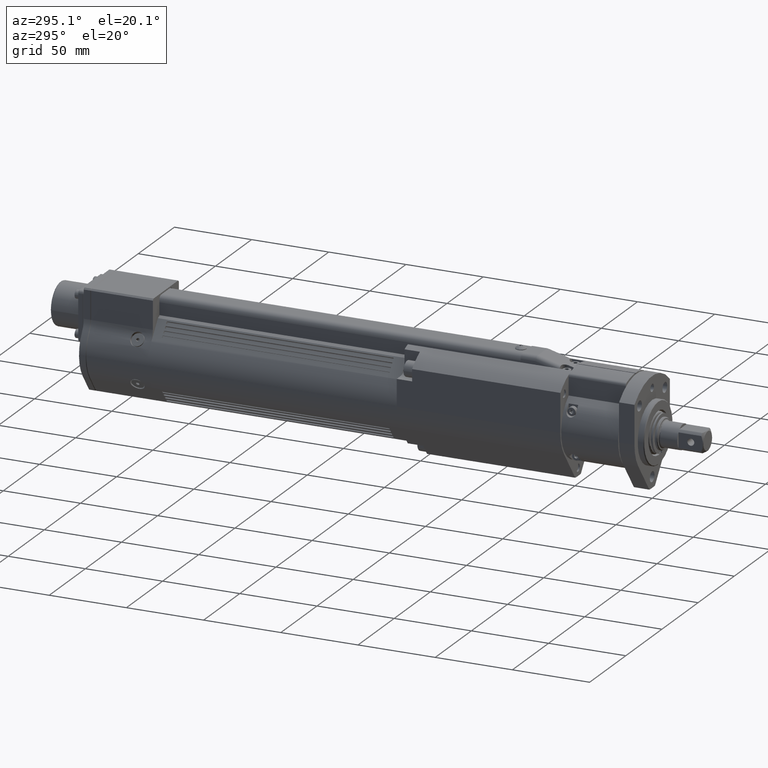
[diagram: clean part render]
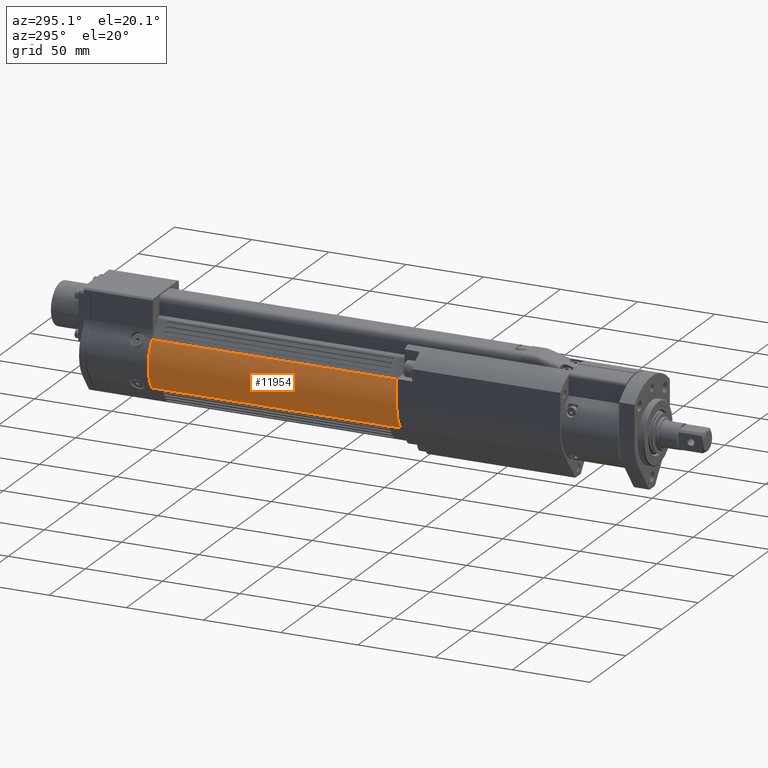
[diagram: same view with one face highlighted and labeled with its STEP entity id]
A machine part, auxiliary view. The second image highlights one B-rep face of the part: STEP entity #11954.
In plain terms, the highlighted cylindrical surface (partial cylindrical patch) has radius 24.5 mm, axis along (0, 1, 0).
Its self-contained STEP definition (entity closure, byte-faithful):
#1421=LINE('',#19137,#2456);
#1424=LINE('',#19142,#2459);
#2456=VECTOR('',#15315,10.);
#2459=VECTOR('',#15320,10.);
#2937=CYLINDRICAL_SURFACE('',#12928,24.5000000000046);
#3361=FACE_OUTER_BOUND('',#4085,.T.);
#4085=EDGE_LOOP('',(#9347,#9348,#9349,#9350,#9351,#9352));
#4704=CIRCLE('',#12792,24.5000000000046);
#4718=CIRCLE('',#12822,24.5000000000046);
#4743=CIRCLE('',#12929,24.5);
#4744=CIRCLE('',#12930,24.5000000000046);
#5413=VERTEX_POINT('',#18449);
#5414=VERTEX_POINT('',#18450);
#5443=VERTEX_POINT('',#18564);
#5608=VERTEX_POINT('',#19136);
#5609=VERTEX_POINT('',#19141);
#5610=VERTEX_POINT('',#19143);
#6699=EDGE_CURVE('',#5413,#5414,#4704,.T.);
#6744=EDGE_CURVE('',#5443,#5413,#4718,.T.);
#6966=EDGE_CURVE('',#5414,#5608,#1421,.T.);
#6969=EDGE_CURVE('',#5443,#5609,#1424,.T.);
#6970=EDGE_CURVE('',#5610,#5609,#4743,.T.);
#6971=EDGE_CURVE('',#5608,#5610,#4744,.T.);
#9347=ORIENTED_EDGE('',*,*,#6966,.F.);
#9348=ORIENTED_EDGE('',*,*,#6699,.F.);
#9349=ORIENTED_EDGE('',*,*,#6744,.F.);
#9350=ORIENTED_EDGE('',*,*,#6969,.T.);
#9351=ORIENTED_EDGE('',*,*,#6970,.F.);
#9352=ORIENTED_EDGE('',*,*,#6971,.F.);
#11954=ADVANCED_FACE('',(#3361),#2937,.T.);
#12792=AXIS2_PLACEMENT_3D('',#18451,#14827,#14828);
#12822=AXIS2_PLACEMENT_3D('',#18566,#14915,#14916);
#12928=AXIS2_PLACEMENT_3D('',#19140,#15318,#15319);
#12929=AXIS2_PLACEMENT_3D('',#19144,#15321,#15322);
#12930=AXIS2_PLACEMENT_3D('',#19145,#15323,#15324);
#14827=DIRECTION('center_axis',(2.21945204084769E-16,1.,7.29172631221787E-18));
#14828=DIRECTION('ref_axis',(-0.788010753602872,1.79384442508469E-16,-0.615661475330586));
#14915=DIRECTION('center_axis',(2.21945204084769E-16,1.,7.29172631221787E-18));
#14916=DIRECTION('ref_axis',(-0.788010753602872,1.79384442508469E-16,-0.615661475330586));
#15315=DIRECTION('',(-2.21945204084769E-16,-1.,-7.29172631221787E-18));
#15318=DIRECTION('center_axis',(2.21945204084769E-16,1.,7.29172631221787E-18));
#15319=DIRECTION('ref_axis',(0.788010753602872,-1.79384442508469E-16,0.615661475330586));
#15320=DIRECTION('',(-2.21945204084769E-16,-1.,-7.29172631221787E-18));
#15321=DIRECTION('center_axis',(-2.18217717075214E-16,-1.,-7.16926448557887E-18));
#15322=DIRECTION('ref_axis',(-1.,2.18217717075214E-16,1.32289332529069E-15));
#15323=DIRECTION('center_axis',(-2.18217717075214E-16,-1.,-7.16926448557887E-18));
#15324=DIRECTION('ref_axis',(0.788010753602872,-1.79384442508469E-16,0.615661475330586));
#18449=CARTESIAN_POINT('',(-20.1369863014679,315.,13.9553496084682));
#18450=CARTESIAN_POINT('',(-19.3062634634646,315.,15.083706145348));
#18451=CARTESIAN_POINT('Origin',(-1.68961215313616E-12,315.,-1.24752048708863E-11));
#18564=CARTESIAN_POINT('',(-19.3062634632757,315.,-15.0837061456147));
#18566=CARTESIAN_POINT('Origin',(-1.68961215313616E-12,315.,-1.24752048708863E-11));
#19136=CARTESIAN_POINT('',(-19.3062634634646,154.,15.083706145348));
#19137=CARTESIAN_POINT('',(-19.3062634634646,162.,15.083706145348));
#19140=CARTESIAN_POINT('Origin',(-1.72356976936114E-12,162.,-1.24763205050121E-11));
#19141=CARTESIAN_POINT('',(-19.3062634633647,154.,-15.0837061454786));
#19142=CARTESIAN_POINT('',(-19.3062634632757,162.,-15.0837061456147));
#19143=CARTESIAN_POINT('',(-24.5,154.,8.03586433456208E-14));
#19144=CARTESIAN_POINT('Origin',(1.98452365651747E-14,154.,4.79477568759989E-14));
#19145=CARTESIAN_POINT('Origin',(-1.72534533099382E-12,154.,-1.24763788388226E-11));